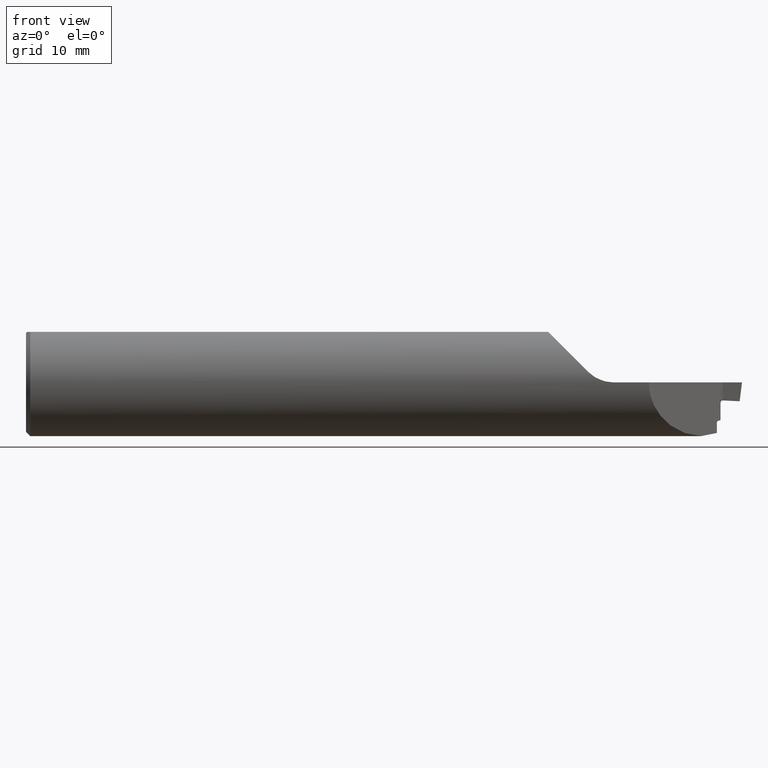
[diagram: clean part render]
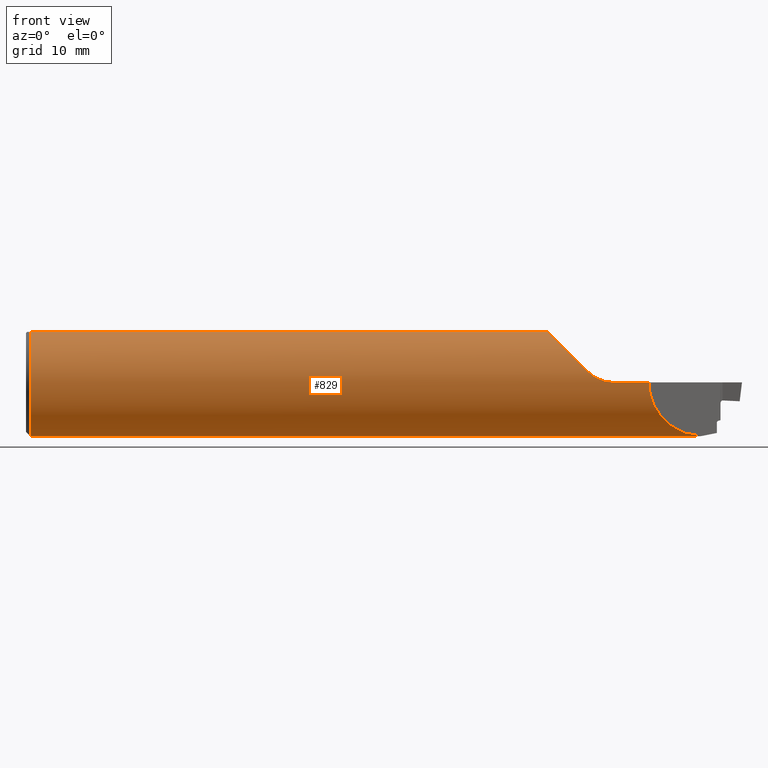
[diagram: same view with one face highlighted and labeled with its STEP entity id]
A machine part, front view. The second image highlights one B-rep face of the part: STEP entity #829.
In plain terms, the highlighted cylindrical surface (partial cylindrical patch) has radius 4.7587 mm, axis along (-1, -0, -0).
Its self-contained STEP definition (entity closure, byte-faithful):
#5 = CARTESIAN_POINT ( 'NONE',  ( 0.01499999999999953280, 0.000000000000000000, -0.1873499999999999888 ) ) ;
#6 = DIRECTION ( 'NONE',  ( -1.000000000000000000, -0.000000000000000000, -0.000000000000000000 ) ) ;
#11 = DIRECTION ( 'NONE',  ( -1.000000000000000000, -0.000000000000000000, -0.000000000000000000 ) ) ;
#17 = CARTESIAN_POINT ( 'NONE',  ( 1.335009689054889037, 0.06325108694718309388, 0.1763499999999996737 ) ) ;
#21 = CARTESIAN_POINT ( 'NONE',  ( 1.337195659723047436, 0.007509920994524191089, -0.1872250261289547246 ) ) ;
#22 = CARTESIAN_POINT ( 'NONE',  ( 2.043515043950825838, -0.1873499999999999888, 3.001297844601850477E-19 ) ) ;
#23 = ORIENTED_EDGE ( 'NONE', *, *, #535, .F. ) ;
#26 = ORIENTED_EDGE ( 'NONE', *, *, #474, .T. ) ;
#34 = AXIS2_PLACEMENT_3D ( 'NONE', #514, #866, #869 ) ;
#39 = VERTEX_POINT ( 'NONE', #486 ) ;
#44 = FACE_OUTER_BOUND ( 'NONE', #409, .T. ) ;
#57 = CARTESIAN_POINT ( 'NONE',  ( 1.897364539052141197, -0.1705819631923700119, 0.1026354609478592056 ) ) ;
#77 = CARTESIAN_POINT ( 'NONE',  ( 1.963388347648318932, -0.1837378823544007778, 0.03661165235168152565 ) ) ;
#84 = CARTESIAN_POINT ( 'NONE',  ( 1.338951377213943861, -0.002870465228317849431, -0.1873283842962036871 ) ) ;
#86 = VECTOR ( 'NONE', #11, 39.37007874015748143 ) ;
#91 = CARTESIAN_POINT ( 'NONE',  ( 2.051776695296636976, -0.1873499999999999888, 0.000000000000000000 ) ) ;
#121 = VERTEX_POINT ( 'NONE', #254 ) ;
#123 = CIRCLE ( 'NONE', #235, 0.1873499999999999888 ) ;
#134 = CARTESIAN_POINT ( 'NONE',  ( 1.336187288558007502, 0.01991515597133086679, -0.1863922880607652710 ) ) ;
#136 = CARTESIAN_POINT ( 'NONE',  ( 1.335000000000000187, 0.06629317938995302195, 0.1752365688409875943 ) ) ;
#142 = VERTEX_POINT ( 'NONE', #411 ) ;
#143 = CARTESIAN_POINT ( 'NONE',  ( 0.000000000000000000, -0.1873499999999999888, 0.000000000000000000 ) ) ;
#145 = CARTESIAN_POINT ( 'NONE',  ( 1.969176586392017869, -0.1848912481268661367, 0.03082341360798271021 ) ) ;
#147 = CARTESIAN_POINT ( 'NONE',  ( 1.335166595942603118, 0.04439214968827082108, -0.1824345190479061685 ) ) ;
#151 = CARTESIAN_POINT ( 'NONE',  ( 2.035390929681094807, -0.1873549854116181856, 0.0008110107679984991354 ) ) ;
#155 = EDGE_CURVE ( 'NONE', #195, #563, #207, .T. ) ;
#172 = EDGE_CURVE ( 'NONE', #289, #214, #397, .T. ) ;
#173 = DIRECTION ( 'NONE',  ( -1.000000000000000000, -0.000000000000000000, -0.000000000000000000 ) ) ;
#178 = EDGE_CURVE ( 'NONE', #380, #121, #448, .T. ) ;
#185 = VERTEX_POINT ( 'NONE', #5 ) ;
#194 =( BOUNDED_CURVE ( )  B_SPLINE_CURVE ( 3, ( #377, #381, #792, #739 ),
 .UNSPECIFIED., .F., .T. ) 
 B_SPLINE_CURVE_WITH_KNOTS ( ( 4, 4 ),
 ( 4.736077221231925094, 6.283185307179586232 ),
 .UNSPECIFIED. ) 
 CURVE ( )  GEOMETRIC_REPRESENTATION_ITEM ( )  RATIONAL_B_SPLINE_CURVE ( ( 1.000000000000000000, 0.8102880308174518209, 0.8102880308174518209, 1.000000000000000000 ) ) 
 REPRESENTATION_ITEM ( '' )  );
#195 = VERTEX_POINT ( 'NONE', #268 ) ;
#196 = VERTEX_POINT ( 'NONE', #545 ) ;
#199 = CARTESIAN_POINT ( 'NONE',  ( 1.989151228518893477, -0.1866765615736736272, 0.01651232730745808355 ) ) ;
#207 = B_SPLINE_CURVE_WITH_KNOTS ( 'NONE', 3,
 ( #754, #136, #827, #275 ),
 .UNSPECIFIED., .F., .F.,
 ( 4, 4 ),
 ( 0.002381199190277828726, 0.002506274907967739364 ),
 .UNSPECIFIED. ) ;
#214 = VERTEX_POINT ( 'NONE', #405 ) ;
#216 = AXIS2_PLACEMENT_3D ( 'NONE', #797, #802, #724 ) ;
#233 = CARTESIAN_POINT ( 'NONE',  ( 0.01499999999999954321, -0.06325108694718213631, 0.1763499999999999790 ) ) ;
#235 = AXIS2_PLACEMENT_3D ( 'NONE', #339, #618, #406 ) ;
#254 = CARTESIAN_POINT ( 'NONE',  ( 1.823649999999999771, -0.06325108694718213631, 0.1763499999999999790 ) ) ;
#267 = ORIENTED_EDGE ( 'NONE', *, *, #172, .F. ) ;
#268 = CARTESIAN_POINT ( 'NONE',  ( 1.335000000000000187, 0.06780158507429057124, 0.1746509878626906764 ) ) ;
#275 = CARTESIAN_POINT ( 'NONE',  ( 1.335009689054889037, 0.06325108694718309388, 0.1763499999999996737 ) ) ;
#278 = CARTESIAN_POINT ( 'NONE',  ( 0.01499999999999953280, 0.000000000000000000, 0.000000000000000000 ) ) ;
#286 = CARTESIAN_POINT ( 'NONE',  ( 1.336913895729895607, 0.01061167438636866772, -0.1870750754728970622 ) ) ;
#287 = B_SPLINE_CURVE_WITH_KNOTS ( 'NONE', 3,
 ( #634, #847, #776, #709, #84, #570, #852, #640, #360, #21, #286, #134, #499, #147, #711, #833 ),
 .UNSPECIFIED., .F., .F.,
 ( 4, 2, 2, 2, 2, 2, 2, 4 ),
 ( 1.972663511944079485E-07, 3.038878334213652248E-05, 6.058030033307863711E-05, 0.0001209633343149629206, 0.0002417294022787314469, 0.0004832615382062712371, 0.0009663258100613504381, 0.001932454353771507647 ),
 .UNSPECIFIED. ) ;
#289 = VERTEX_POINT ( 'NONE', #622 ) ;
#301 = EDGE_CURVE ( 'NONE', #142, #698, #496, .T. ) ;
#307 = CARTESIAN_POINT ( 'NONE',  ( 0.000000000000000000, -0.06325108694718213631, 0.1763499999999999790 ) ) ;
#312 = EDGE_CURVE ( 'NONE', #214, #196, #287, .T. ) ;
#315 = CARTESIAN_POINT ( 'NONE',  ( 2.051776695296636976, -0.1873499999999999888, 0.000000000000000000 ) ) ;
#339 = CARTESIAN_POINT ( 'NONE',  ( 1.335000000000000187, 0.000000000000000000, 0.000000000000000000 ) ) ;
#344 = CARTESIAN_POINT ( 'NONE',  ( 1.846378452100291501, -0.1266201564974553662, 0.1536215478997087214 ) ) ;
#355 = CARTESIAN_POINT ( 'NONE',  ( 2.011462618758882659, -0.1872671557635287864, 0.006396047567269131165 ) ) ;
#360 = CARTESIAN_POINT ( 'NONE',  ( 1.337785276688023162, 0.002866821372282767413, -0.1873344617009971291 ) ) ;
#375 = ORIENTED_EDGE ( 'NONE', *, *, #645, .T. ) ;
#376 = CIRCLE ( 'NONE', #216, 0.1873499999999999888 ) ;
#377 = CARTESIAN_POINT ( 'NONE',  ( 2.357912423116064193, -0.004437576883935920487, -0.1872974383471407711 ) ) ;
#380 = VERTEX_POINT ( 'NONE', #553 ) ;
#381 = CARTESIAN_POINT ( 'NONE',  ( 2.250245845164273728, -0.1121041548357255835, -0.1847465293667054365 ) ) ;
#394 = B_SPLINE_CURVE_WITH_KNOTS ( 'NONE', 3,
 ( #315, #22, #151, #430, #355, #710, #199, #642, #145, #77 ),
 .UNSPECIFIED., .F., .F.,
 ( 4, 2, 2, 2, 4 ),
 ( 0.000000000000000000, 0.0006206708188418187102, 0.001241341637683637420, 0.001862012456525456022, 0.002482683275367274841 ),
 .UNSPECIFIED. ) ;
#397 = LINE ( 'NONE', #626, #86 ) ;
#401 = EDGE_CURVE ( 'NONE', #871, #185, #519, .T. ) ;
#405 = CARTESIAN_POINT ( 'NONE',  ( 1.340000000000000080, -0.004437576883793904747, -0.1872974383471392446 ) ) ;
#406 = DIRECTION ( 'NONE',  ( 0.000000000000000000, 0.000000000000000000, -1.000000000000000000 ) ) ;
#409 = EDGE_LOOP ( 'NONE', ( #267, #660, #605, #26, #691, #656, #608, #855, #375, #723, #23, #879 ) ) ;
#411 = CARTESIAN_POINT ( 'NONE',  ( 2.174999999999999822, -0.1873499999999999888, 0.000000000000000000 ) ) ;
#430 = CARTESIAN_POINT ( 'NONE',  ( 2.019406815221594709, -0.1873142647345006628, 0.003989301195303232572 ) ) ;
#448 =( BOUNDED_CURVE ( )  B_SPLINE_CURVE ( 3, ( #822, #57, #344, #621 ),
 .UNSPECIFIED., .F., .T. ) 
 B_SPLINE_CURVE_WITH_KNOTS ( ( 4, 4 ),
 ( 4.909073120026993919, 5.938809479923476076 ),
 .UNSPECIFIED. ) 
 CURVE ( )  GEOMETRIC_REPRESENTATION_ITEM ( )  RATIONAL_B_SPLINE_CURVE ( ( 1.000000000000000000, 0.9135717604705588801, 0.9135717604705588801, 1.000000000000000000 ) ) 
 REPRESENTATION_ITEM ( '' )  );
#453 = VECTOR ( 'NONE', #518, 39.37007874015748143 ) ;
#474 = EDGE_CURVE ( 'NONE', #698, #380, #394, .T. ) ;
#486 = CARTESIAN_POINT ( 'NONE',  ( 0.01499999999999953280, 0.06325108694718213631, 0.1763499999999999790 ) ) ;
#494 = VECTOR ( 'NONE', #6, 39.37007874015748143 ) ;
#496 = LINE ( 'NONE', #143, #494 ) ;
#499 = CARTESIAN_POINT ( 'NONE',  ( 1.335876431591974001, 0.02611473827042134349, -0.1856240595763762047 ) ) ;
#514 = CARTESIAN_POINT ( 'NONE',  ( 0.000000000000000000, 0.000000000000000000, 0.000000000000000000 ) ) ;
#518 = DIRECTION ( 'NONE',  ( 1.000000000000000000, 0.000000000000000000, 0.000000000000000000 ) ) ;
#519 = CIRCLE ( 'NONE', #768, 0.1873499999999999888 ) ;
#535 = EDGE_CURVE ( 'NONE', #196, #195, #123, .T. ) ;
#542 = VECTOR ( 'NONE', #173, 39.37007874015748143 ) ;
#545 = CARTESIAN_POINT ( 'NONE',  ( 1.335000000000000187, 0.06780158507429057124, -0.1746509878626906764 ) ) ;
#553 = CARTESIAN_POINT ( 'NONE',  ( 1.963388347648318932, -0.1837378823544007778, 0.03661165235168152565 ) ) ;
#562 = DIRECTION ( 'NONE',  ( 1.000000000000000000, 0.000000000000000000, 0.000000000000000000 ) ) ;
#563 = VERTEX_POINT ( 'NONE', #17 ) ;
#570 = CARTESIAN_POINT ( 'NONE',  ( 1.338620484590426152, -0.001745530422709880031, -0.1873433696669191129 ) ) ;
#605 = ORIENTED_EDGE ( 'NONE', *, *, #301, .T. ) ;
#608 = ORIENTED_EDGE ( 'NONE', *, *, #401, .T. ) ;
#618 = DIRECTION ( 'NONE',  ( 1.000000000000000000, 0.000000000000000000, 0.000000000000000000 ) ) ;
#621 = CARTESIAN_POINT ( 'NONE',  ( 1.823649999999999771, -0.06325108694718213631, 0.1763499999999999790 ) ) ;
#622 = CARTESIAN_POINT ( 'NONE',  ( 2.357912423116064193, -0.004437576883935920487, -0.1872974383471407711 ) ) ;
#626 = CARTESIAN_POINT ( 'NONE',  ( 1.877500000000000391, -0.004437576883793733010, -0.1872974383471392168 ) ) ;
#634 = CARTESIAN_POINT ( 'NONE',  ( 1.340000000000000080, -0.004437576883793904747, -0.1872974383471392446 ) ) ;
#640 = CARTESIAN_POINT ( 'NONE',  ( 1.338007575457989207, 0.001316809534356252120, -0.1873516452513924180 ) ) ;
#642 = CARTESIAN_POINT ( 'NONE',  ( 1.975584630924563934, -0.1856528012981897013, 0.02557015768846748055 ) ) ;
#645 = EDGE_CURVE ( 'NONE', #39, #563, #659, .T. ) ;
#656 = ORIENTED_EDGE ( 'NONE', *, *, #665, .T. ) ;
#659 = LINE ( 'NONE', #867, #453 ) ;
#660 = ORIENTED_EDGE ( 'NONE', *, *, #830, .T. ) ;
#665 = EDGE_CURVE ( 'NONE', #121, #871, #785, .T. ) ;
#691 = ORIENTED_EDGE ( 'NONE', *, *, #178, .T. ) ;
#698 = VERTEX_POINT ( 'NONE', #91 ) ;
#709 = CARTESIAN_POINT ( 'NONE',  ( 1.339074979391454923, -0.003245713992497605265, -0.1873222229057585064 ) ) ;
#710 = CARTESIAN_POINT ( 'NONE',  ( 1.996326790910569082, -0.1869473204897925123, 0.01267266404239195815 ) ) ;
#711 = CARTESIAN_POINT ( 'NONE',  ( 1.334999999999999742, 0.05625817887700514802, -0.1791322750681638709 ) ) ;
#723 = ORIENTED_EDGE ( 'NONE', *, *, #155, .F. ) ;
#724 = DIRECTION ( 'NONE',  ( 0.000000000000000000, 0.000000000000000000, -1.000000000000000000 ) ) ;
#739 = CARTESIAN_POINT ( 'NONE',  ( 2.174999999999999822, -0.1873499999999999888, 0.000000000000000000 ) ) ;
#754 = CARTESIAN_POINT ( 'NONE',  ( 1.335000000000000187, 0.06780158507429057124, 0.1746509878626906764 ) ) ;
#768 = AXIS2_PLACEMENT_3D ( 'NONE', #278, #562, #849 ) ;
#776 = CARTESIAN_POINT ( 'NONE',  ( 1.339399018889529280, -0.003959314961772966192, -0.1873084986825458431 ) ) ;
#785 = LINE ( 'NONE', #307, #542 ) ;
#792 = CARTESIAN_POINT ( 'NONE',  ( 2.174999999999999822, -0.1873500000000000165, -0.1076967926378278456 ) ) ;
#797 = CARTESIAN_POINT ( 'NONE',  ( 0.01499999999999953280, 0.000000000000000000, 0.000000000000000000 ) ) ;
#802 = DIRECTION ( 'NONE',  ( 1.000000000000000000, 0.000000000000000000, 0.000000000000000000 ) ) ;
#806 = CYLINDRICAL_SURFACE ( 'NONE', #34, 0.1873499999999999888 ) ;
#822 = CARTESIAN_POINT ( 'NONE',  ( 1.963388347648318932, -0.1837378823544007778, 0.03661165235168152565 ) ) ;
#827 = CARTESIAN_POINT ( 'NONE',  ( 1.335003182178051029, 0.06477635905624776202, 0.1758029338316828838 ) ) ;
#829 = ADVANCED_FACE ( 'NONE', ( #44 ), #806, .T. ) ;
#830 = EDGE_CURVE ( 'NONE', #289, #142, #194, .T. ) ;
#833 = CARTESIAN_POINT ( 'NONE',  ( 1.335000000000000187, 0.06780158507429057124, -0.1746509878626906764 ) ) ;
#847 = CARTESIAN_POINT ( 'NONE',  ( 1.339598998625805004, -0.004437576883793187439, -0.1872974383471391890 ) ) ;
#849 = DIRECTION ( 'NONE',  ( 0.000000000000000000, 0.000000000000000000, -1.000000000000000000 ) ) ;
#852 = CARTESIAN_POINT ( 'NONE',  ( 1.338454682457659528, -0.0009828732464432995714, -0.1873489900603167724 ) ) ;
#855 = ORIENTED_EDGE ( 'NONE', *, *, #899, .T. ) ;
#866 = DIRECTION ( 'NONE',  ( -1.000000000000000000, -0.000000000000000000, -0.000000000000000000 ) ) ;
#867 = CARTESIAN_POINT ( 'NONE',  ( 0.000000000000000000, 0.06325108694718213631, 0.1763499999999999790 ) ) ;
#869 = DIRECTION ( 'NONE',  ( 0.000000000000000000, 0.000000000000000000, 1.000000000000000000 ) ) ;
#871 = VERTEX_POINT ( 'NONE', #233 ) ;
#879 = ORIENTED_EDGE ( 'NONE', *, *, #312, .F. ) ;
#899 = EDGE_CURVE ( 'NONE', #185, #39, #376, .T. ) ;